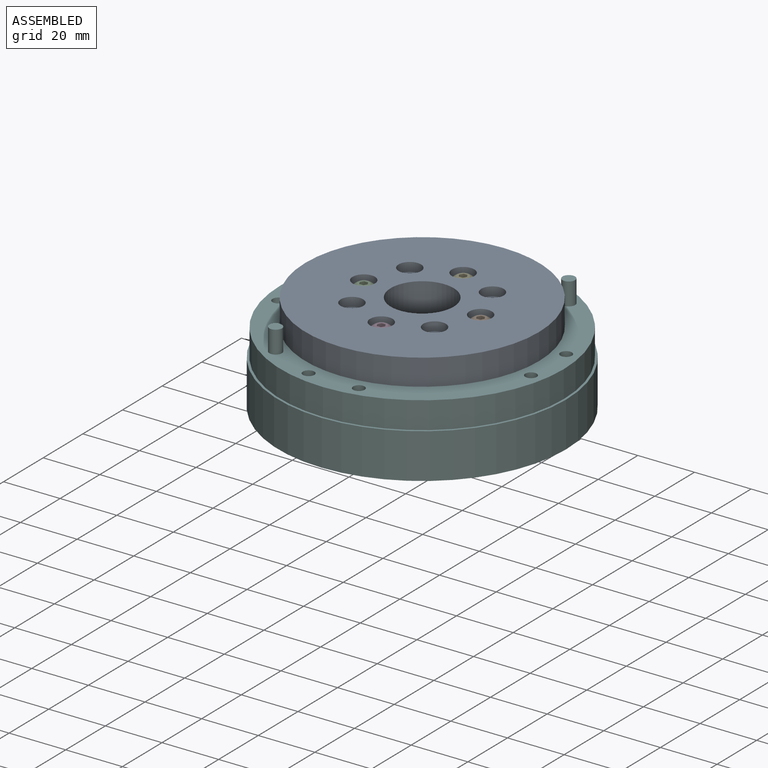
[diagram: assembled view]
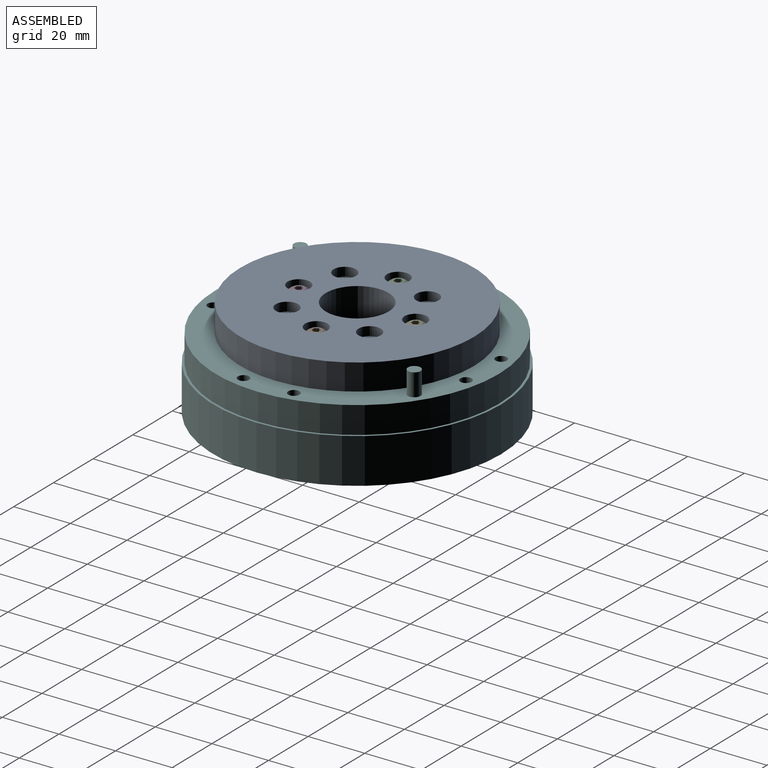
[diagram: assembled view, second angle]
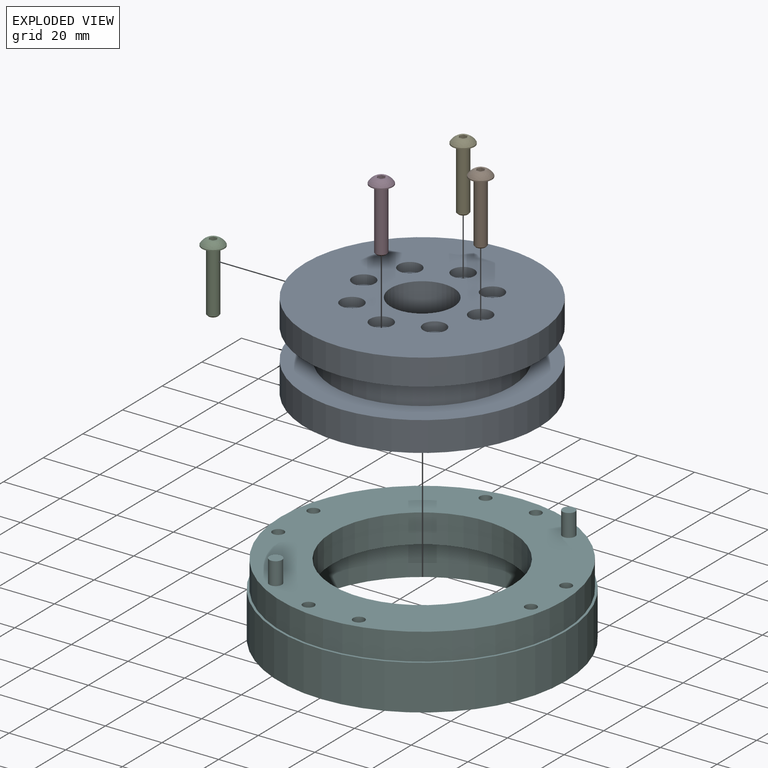
[diagram: exploded view]
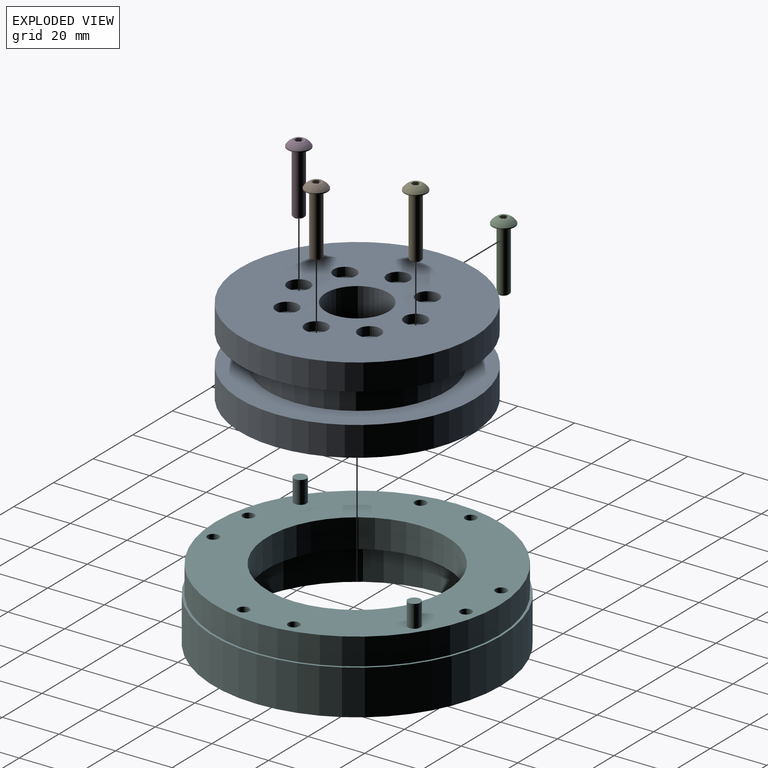
[diagram: exploded view, second angle]
ASSEMBLY  parts=6 mates=5
PART A: 32 faces, bbox 82.6x82.6x30.4 mm
  f0: cylinder r=2.02mm len=27.24mm, axis (0,0,1), area 345.6mm2, adj f10,f30
  f1: cylinder r=2.02mm len=27.24mm, axis (0,0,1), area 345.6mm2, adj f10,f28
  f2: cylinder r=2.02mm len=27.24mm, axis (0,0,1), area 345.6mm2, adj f10,f26
  f3: cylinder r=2.02mm len=27.24mm, axis (0,0,1), area 345.6mm2, adj f10,f24
  f4: cylinder r=2.02mm len=27.24mm, axis (0,0,1), area 345.6mm2, adj f10,f22
  f5: cylinder r=2.02mm len=27.24mm, axis (0,0,1), area 345.6mm2, adj f10,f20
  f6: cylinder r=2.02mm len=27.24mm, axis (0,0,1), area 345.6mm2, adj f10,f18
  f7: cylinder r=2.02mm len=27.24mm, axis (0,0,1), area 345.6mm2, adj f10,f16
  f8: cylinder r=11.11mm len=30.42mm, axis (0,0,1), area 2123.7mm2, adj f10,f14
  f9: cylinder r=41.27mm len=82.55mm, axis (0,0,1), area 2717.2mm2, adj f10,f11
  f10: plane 82.55x82.55mm, normal (0,0,-1), area 4861.7mm2, adj f0,f1,f2,f3,f4,f5,f6,f7
  f11: plane 82.55x82.55mm, normal (0,0,1), area 2210.5mm2, adj f9,f12
  f12: cylinder r=31.62mm len=63.25mm, axis (0,0,-1), area 2119.7mm2, adj f11,f15
  f13: cylinder r=41.27mm len=82.55mm, axis (0,0,-1), area 2404.3mm2, adj f14,f15
  f14: plane 82.55x82.55mm, normal (0,0,1), area 4568.3mm2, adj f8,f13,f17,f19,f21,f23,f25,f27
  f15: plane 82.55x82.55mm, normal (0,0,-1), area 2210.5mm2, adj f12,f13
  f16: plane 7.94x7.94mm, normal (0,0,1), area 36.7mm2, adj f7,f17
  f17: cylinder r=3.97mm len=7.94mm, axis (0,0,1), area 79.2mm2, adj f14,f16
  f18: plane 7.94x7.94mm, normal (0,0,1), area 36.7mm2, adj f6,f19
  f19: cylinder r=3.97mm len=7.94mm, axis (0,0,1), area 79.2mm2, adj f14,f18
  f20: plane 7.94x7.94mm, normal (0,0,1), area 36.7mm2, adj f5,f21
  f21: cylinder r=3.97mm len=7.94mm, axis (0,0,1), area 79.2mm2, adj f14,f20
  f22: plane 7.94x7.94mm, normal (0,0,1), area 36.7mm2, adj f4,f23
  f23: cylinder r=3.97mm len=7.94mm, axis (0,0,1), area 79.2mm2, adj f14,f22
  f24: plane 7.94x7.94mm, normal (0,0,1), area 36.7mm2, adj f3,f25
  f25: cylinder r=3.97mm len=7.94mm, axis (0,0,1), area 79.2mm2, adj f14,f24
  f26: plane 7.94x7.94mm, normal (0,0,1), area 36.7mm2, adj f2,f27
  f27: cylinder r=3.97mm len=7.94mm, axis (0,0,1), area 79.2mm2, adj f14,f26
  f28: plane 7.94x7.94mm, normal (0,0,1), area 36.7mm2, adj f1,f29
  f29: cylinder r=3.97mm len=7.94mm, axis (0,0,1), area 79.2mm2, adj f14,f28
  f30: plane 7.94x7.94mm, normal (0,0,1), area 36.7mm2, adj f0,f31
  f31: cylinder r=3.97mm len=7.94mm, axis (0,0,1), area 79.2mm2, adj f14,f30
PART B: 20 faces, bbox 24.9x8x7.9 mm
  f0: cone r=1.61mm half-angle=45deg, axis (-1,0,0), area 7.8mm2, adj f1,f2
  f1: plane 3.22x3.22mm, normal (1,0,0), area 8.1mm2, adj f0
  f2: cylinder r=2.08mm len=21.75mm, axis (-1,0,0), area 284.7mm2, adj f0,f3
  f3: plane 7.92x7.92mm, normal (1,0,0), area 35.7mm2, adj f2,f4
  f4: cylinder r=3.96mm len=7.92mm, axis (-1,0,0), area 9.5mm2, adj f3,f5
  f5: sphere r=4.58mm, area 52.7mm2, adj f4,f6
  f6: plane 3.96x3.96mm, normal (-1,0,0), area 7.4mm2, adj f5,f7,f8,f9,f10,f11,f12
  f7: plane 1.38x1.32mm, normal (0,1,0), area 1.8mm2, adj f6,f9,f12,f13,f14
  f8: plane 1.32x1.19mm, normal (0,-0.5,-0.87), area 1.8mm2, adj f6,f11,f12,f15,f16
  f9: plane 1.32x1.19mm, normal (0,0.5,0.87), area 1.8mm2, adj f6,f7,f10,f14,f17
  f10: plane 1.32x1.19mm, normal (0,-0.5,0.87), area 1.8mm2, adj f6,f9,f11,f17,f18
  f11: plane 1.38x1.32mm, normal (0,-1,0), area 1.8mm2, adj f6,f8,f10,f15,f18
  f12: plane 1.32x1.19mm, normal (0,0.5,-0.87), area 1.8mm2, adj f6,f7,f8,f13,f16
  f13: plane 1.03x0.6mm, normal (-1,0,0), area 0.1mm2, adj f7,f12,f19
  f14: plane 1.03x0.6mm, normal (-1,0,0), area 0.1mm2, adj f7,f9,f19
  f15: plane 1.03x0.6mm, normal (-1,0,0), area 0.1mm2, adj f8,f11,f19
  f16: plane 1.19x0.34mm, normal (-1,0,0), area 0.1mm2, adj f8,f12,f19
  f17: plane 1.19x0.34mm, normal (-1,0,0), area 0.1mm2, adj f9,f10,f19
  f18: plane 1.03x0.6mm, normal (-1,0,0), area 0.1mm2, adj f10,f11,f19
  f19: cone r=1732.05mm half-angle=60deg, axis (-1,0,0), area 5.2mm2, adj f13,f14,f15,f16,f17,f18
PART C: same geometry as B
PART D: same geometry as B
PART E: same geometry as B
PART F: 28 faces, bbox 101.6x101.6x33.3 mm
  f0: cylinder r=31.75mm len=63.5mm, axis (0,0,-1), area 2026.8mm2, adj f5,f7
  f1: cylinder r=50.8mm len=101.6mm, axis (0,0,-1), area 5067.1mm2, adj f2,f3
  f2: plane 101.6x101.6mm, normal (0,0,1), area 251.4mm2, adj f1,f4
  f3: plane 101.6x101.6mm, normal (0,0,-1), area 2547.4mm2, adj f1,f6
  f4: cylinder r=50.01mm len=100.01mm, axis (0,0,-1), area 2992.7mm2, adj f2,f5
  f5: plane 100.01x100.01mm, normal (0,0,1), area 4555.5mm2, adj f0,f4,f8,f10,f12,f14,f16,f18
  f6: cylinder r=42.07mm len=84.14mm, axis (0,0,-1), area 4028.3mm2, adj f3,f7
  f7: plane 84.14x84.14mm, normal (0,0,-1), area 2393mm2, adj f0,f6
  f8: cylinder r=2.02mm len=10.16mm, axis (0,0,1), area 128.9mm2, adj f5,f9
  f9: plane 4.04x4.04mm, normal (0,0,1), area 12.8mm2, adj f8
  f10: cylinder r=2.02mm len=10.16mm, axis (0,0,1), area 128.9mm2, adj f5,f11
  f11: plane 4.04x4.04mm, normal (0,0,1), area 12.8mm2, adj f10
  f12: cylinder r=2.02mm len=10.16mm, axis (0,0,1), area 128.9mm2, adj f5,f13
  f13: plane 4.04x4.04mm, normal (0,0,1), area 12.8mm2, adj f12
  f14: cylinder r=2.02mm len=10.16mm, axis (0,0,1), area 128.9mm2, adj f5,f15
  f15: plane 4.04x4.04mm, normal (0,0,1), area 12.8mm2, adj f14
  f16: cylinder r=2.02mm len=10.16mm, axis (0,0,1), area 128.9mm2, adj f5,f17
  f17: plane 4.04x4.04mm, normal (0,0,1), area 12.8mm2, adj f16
  f18: cylinder r=2.02mm len=10.16mm, axis (0,0,1), area 128.9mm2, adj f5,f19
  f19: plane 4.04x4.04mm, normal (0,0,1), area 12.8mm2, adj f18
  f20: cylinder r=2.02mm len=10.16mm, axis (0,0,1), area 128.9mm2, adj f5,f21
  f21: plane 4.04x4.04mm, normal (0,0,1), area 12.8mm2, adj f20
  f22: cylinder r=2.02mm len=10.16mm, axis (0,0,1), area 128.9mm2, adj f5,f23
  f23: plane 4.04x4.04mm, normal (0,0,1), area 12.8mm2, adj f22
  f24: cylinder r=2.22mm len=7.94mm, axis (0,0,-1), area 110.8mm2, adj f5,f25
  f25: plane 4.45x4.45mm, normal (0,0,1), area 15.5mm2, adj f24
  f26: cylinder r=2.22mm len=7.94mm, axis (0,0,-1), area 110.8mm2, adj f5,f27
  f27: plane 4.45x4.45mm, normal (0,0,1), area 15.5mm2, adj f26
PLACE A t=(-36.54,-2.24,10.82)mm
PLACE B rot(axis=(0.71,0,-0.71),180deg) t=(-15.91,-2.24,44.78)mm
PLACE C rot(axis=(0.71,0,-0.71),180deg) t=(-57.18,-2.24,44.78)mm
PLACE D rot(axis=(0.71,0,-0.71),180deg) t=(-36.54,-22.88,44.78)mm
PLACE E rot(axis=(0.71,0,-0.71),180deg) t=(-36.54,18.39,44.78)mm
PLACE F t=(-36.54,-2.24,10.82)mm
MATE fastened E.f0 <-> A.f7  axis (0,0,-1) through (-36.54,18.39,42.57)mm
MATE fastened D.f0 <-> A.f3  axis (0,0,-1) through (-36.54,-22.88,42.57)mm
MATE fastened B.f0 <-> A.f5  axis (0,0,-1) through (-15.91,-2.24,42.57)mm
MATE revolute A.f8 <-> F.f0  axis (0,0,1) through (-36.54,-2.24,25.81)mm
MATE fastened C.f0 <-> A.f1  axis (0,0,-1) through (-57.18,-2.24,42.57)mm
